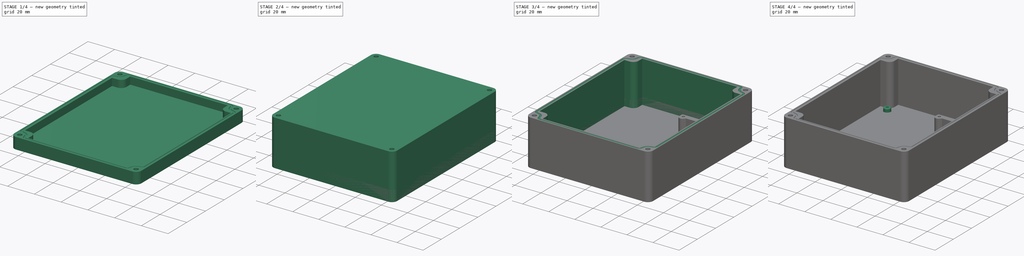
[diagram: build sequence overview — one tinted view per stage of 4, left to right]
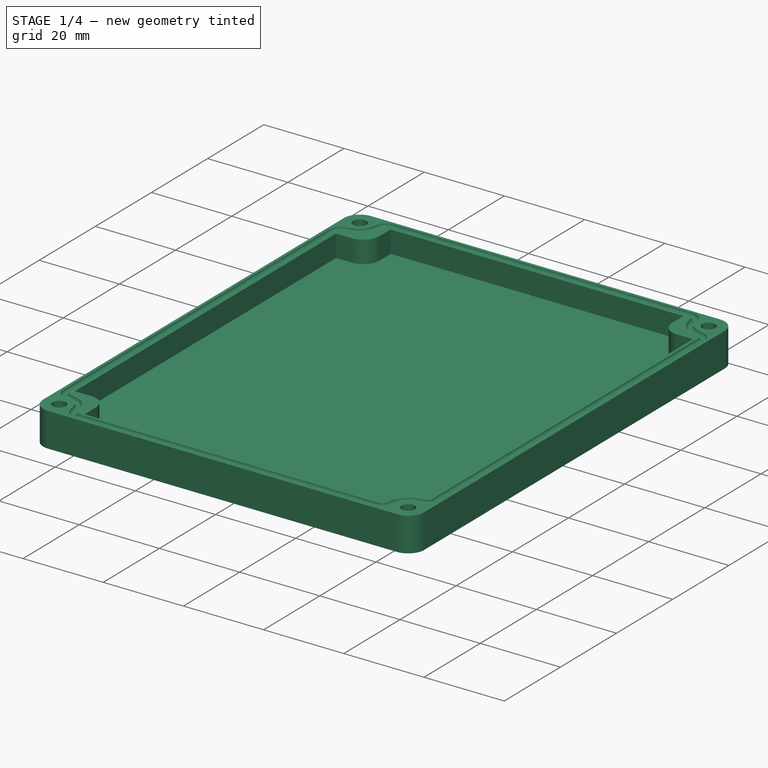
[diagram: stage 1 of 4 — iso view after this stage's code; geometry added in this stage tinted green]
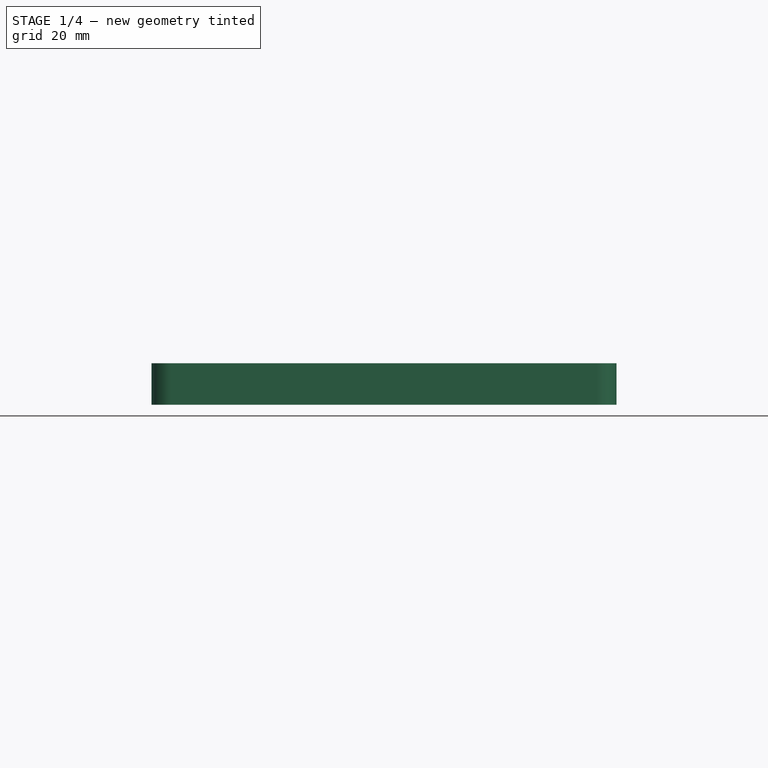
[diagram: stage 1 of 4 — front view after this stage's code; geometry added in this stage tinted green]
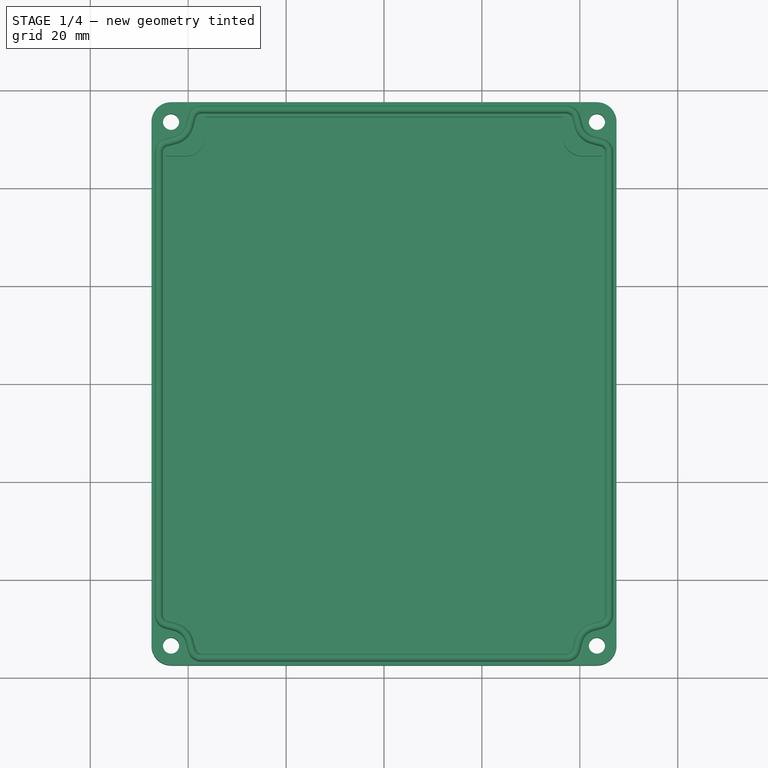
[diagram: stage 1 of 4 — top view after this stage's code; geometry added in this stage tinted green]
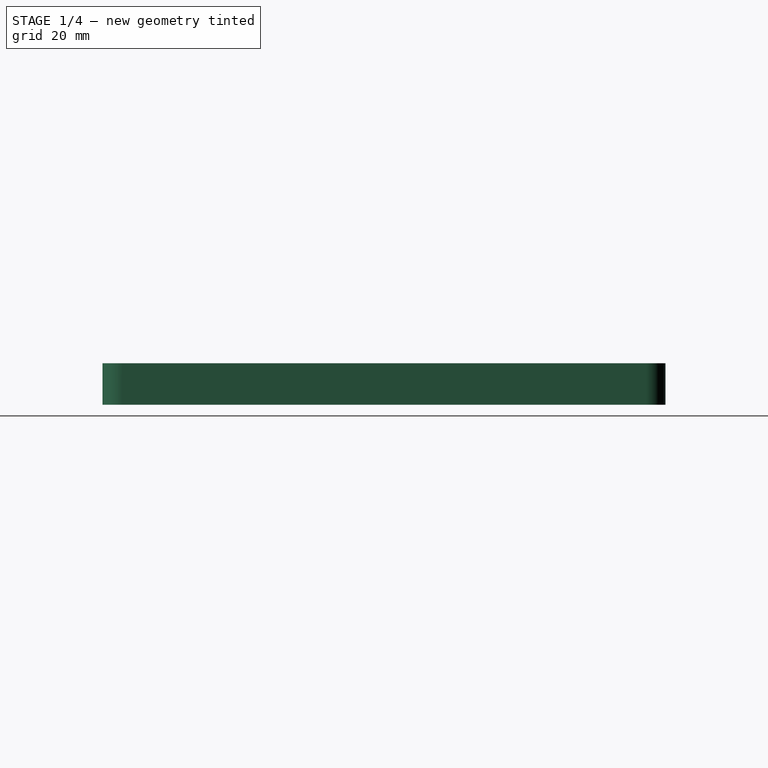
[diagram: stage 1 of 4 — right view after this stage's code; geometry added in this stage tinted green]
FCSTD DOCUMENT  (FreeCAD 0.21R33771 (Git))
Label: ADVtypeB_LCD16x2_paramEnclosure
License: Public Domain
LicenseURL: https://en.wikipedia.org/wiki/Public_domain
objects: Sketcher::SketchObject×12, PartDesign::Pad×4, PartDesign::Pocket×4, PartDesign::SubtractivePipe×2, PartDesign::Body×2, Spreadsheet::Sheet×1, PartDesign::Fillet×1, PartDesign::Chamfer×1, Part::Feature×1, App::Part×1
note: 39 computed .brp shape members not serialized (recipe doc carries the construction recipe); baked Part::Feature solids carry a one-line shape summary decoded from their .brp

FEATURE [Sketcher::SketchObject] Sketch005
  FullyConstrained = true
  MapMode = 5
  Support = -> [XY_Plane011]
  expr: Constraints[20] = Spreadsheet.width
  expr: Constraints[21] = Spreadsheet.lenght
  sketch-geometry (12):
    g0: LineSegment StartX=-47.5 StartY=53.5 StartZ=0 EndX=-47.5 EndY=-53.5 EndZ=0
    g1: LineSegment StartX=-43.5 StartY=57.5 StartZ=0 EndX=43.5 EndY=57.5 EndZ=0
    g2: LineSegment StartX=47.5 StartY=53.5 StartZ=0 EndX=47.5 EndY=-53.5 EndZ=0
    g3: LineSegment StartX=-43.5 StartY=-57.5 StartZ=0 EndX=43.5 EndY=-57.5 EndZ=0
    g4: ArcOfCircle CenterX=43.5 CenterY=-53.5 CenterZ=0 NormalX=0 NormalY=0 NormalZ=1 AngleXU=0 Radius=4 StartAngle=4.71239 EndAngle=6.28319
    g5: ArcOfCircle CenterX=-43.5 CenterY=-53.5 CenterZ=0 NormalX=0 NormalY=0 NormalZ=1 AngleXU=0 Radius=4 StartAngle=3.14159 EndAngle=4.71239
    g6: ArcOfCircle CenterX=-43.5 CenterY=53.5 CenterZ=0 NormalX=0 NormalY=0 NormalZ=1 AngleXU=0 Radius=4 StartAngle=1.5708 EndAngle=3.14159
    g7: ArcOfCircle CenterX=43.5 CenterY=53.5 CenterZ=0 NormalX=0 NormalY=0 NormalZ=1 AngleXU=0 Radius=4 StartAngle=4e-16 EndAngle=1.5708
    g8: Circle CenterX=-43.5 CenterY=53.5 CenterZ=0 NormalX=0 NormalY=0 NormalZ=1 AngleXU=0 Radius=1.65
    g9: Circle CenterX=43.5 CenterY=-53.5 CenterZ=0 NormalX=0 NormalY=0 NormalZ=1 AngleXU=0 Radius=1.65
    g10: Circle CenterX=-43.5 CenterY=-53.5 CenterZ=0 NormalX=0 NormalY=0 NormalZ=1 AngleXU=0 Radius=1.65
    g11: Circle CenterX=43.5 CenterY=53.5 CenterZ=0 NormalX=0 NormalY=0 NormalZ=1 AngleXU=0 Radius=1.65
  constraints (26):
    c: Vertical(g0)
    c: Horizontal(g1)
    c: Vertical(g2)
    c: Horizontal(g3)
    c: Tangent(g7,g2) = 1.5708
    c: Tangent(g7,g1) = 1.5708
    c: Tangent(g6,g1) = 1.5708
    c: Tangent(g6,g0) = -1.5708
    c: Tangent(g5,g0) = -1.5708
    c: Tangent(g5,g3) = -1.5708
    c: Tangent(g4,g3) = -1.5708
    c: Tangent(g4,g2) = 1.5708
    c: Radius(g6) = 4
    c: Radius(g8) = 1.65
    c: Coincident(g8,g6)
    c: Coincident(g11,g7)
    c: Coincident(g9,g4)
    c: Coincident(g10,g5)
    c: Symmetric(g5,g4,g-2)
    c: Symmetric(g7,g4,g-1)
    c: DistanceX(g0,g2) = 95
    c: DistanceY(g3,g1) = 115
    c: Equal(g8,g11)
    c: Equal(g11,g10)
    c: Equal(g10,g9)
    c: Equal(g6,g7)
FEATURE [PartDesign::Pad] Pad001
  Direction = (0,0,1)
  Length = 8.5
  Length2 = 10
  Profile = -> Sketch005
  ReferenceAxis = -> Sketch005 [N_Axis]
  Type = 0
  expr: Length = Spreadsheet.coverheight
FEATURE [Sketcher::SketchObject] Sketch006
  FullyConstrained = true
  MapMode = 5
  Placement = pos=(0,0,8.5) rot=(0,0,1;0rad)
  Support = -> [Pad001]
  expr: Constraints[40] = Spreadsheet.pocketl
  expr: Constraints[41] = Spreadsheet.pocketw
  sketch-geometry (16):
    g0: ArcOfCircle CenterX=-40.5 CenterY=50.5 CenterZ=0 NormalX=0 NormalY=0 NormalZ=1 AngleXU=0 Radius=4 StartAngle=4.71239 EndAngle=6.28319
    g1: ArcOfCircle CenterX=40.5 CenterY=50.5 CenterZ=0 NormalX=0 NormalY=0 NormalZ=1 AngleXU=0 Radius=4 StartAngle=3.14159 EndAngle=4.71239
    g2: ArcOfCircle CenterX=-40.5 CenterY=-50.5 CenterZ=0 NormalX=0 NormalY=0 NormalZ=1 AngleXU=0 Radius=4 StartAngle=-8.08e-14 EndAngle=1.5708
    g3: ArcOfCircle CenterX=40.5 CenterY=-50.5 CenterZ=0 NormalX=0 NormalY=0 NormalZ=1 AngleXU=0 Radius=4 StartAngle=1.5708 EndAngle=3.14159
    g4: LineSegment StartX=-36.5 StartY=-50.5 StartZ=0 EndX=-36.5 EndY=-54.5 EndZ=0
    g5: LineSegment StartX=-36.5 StartY=-54.5 StartZ=0 EndX=36.5 EndY=-54.5 EndZ=0
    g6: LineSegment StartX=36.5 StartY=-54.5 StartZ=0 EndX=36.5 EndY=-50.5 EndZ=0
    g7: LineSegment StartX=40.5 StartY=-46.5 StartZ=0 EndX=44.5 EndY=-46.5 EndZ=0
    g8: LineSegment StartX=44.5 StartY=-46.5 StartZ=0 EndX=44.5 EndY=46.5 EndZ=0
    g9: LineSegment StartX=40.5 StartY=46.5 StartZ=0 EndX=44.5 EndY=46.5 EndZ=0
    g10: LineSegment StartX=36.5 StartY=50.5 StartZ=0 EndX=36.5 EndY=54.5 EndZ=0
    g11: LineSegment StartX=-36.5 StartY=50.5 StartZ=0 EndX=-36.5 EndY=54.5 EndZ=0
    g12: LineSegment StartX=-36.5 StartY=54.5 StartZ=0 EndX=36.5 EndY=54.5 EndZ=0
    g13: LineSegment StartX=-40.5 StartY=46.5 StartZ=0 EndX=-44.5 EndY=46.5 EndZ=0
    g14: LineSegment StartX=-44.5 StartY=46.5 StartZ=0 EndX=-44.5 EndY=-46.5 EndZ=0
    g15: LineSegment StartX=-40.5 StartY=-46.5 StartZ=0 EndX=-44.5 EndY=-46.5 EndZ=0
  constraints (42):
    c: Coincident(g5,g4)
    c: Horizontal(g5)
    c: Coincident(g6,g5)
    c: Horizontal(g7)
    c: Coincident(g8,g7)
    c: Vertical(g8)
    c: Coincident(g9,g8)
    c: Vertical(g11)
    c: Coincident(g12,g11)
    c: Coincident(g12,g10)
    c: Horizontal(g13)
    c: Coincident(g14,g13)
    c: Coincident(g15,g14)
    c: Horizontal(g15)
    c: Vertical(g6)
    c: Horizontal(g9)
    c: Vertical(g10)
    c: Equal(g13,g11)
    c: Equal(g11,g10)
    c: Equal(g10,g9)
    c: Equal(g9,g15)
    c: Equal(g15,g4)
    c: Equal(g4,g6)
    c: Equal(g6,g7)
    c: Equal(g2,g3)
    c: Equal(g3,g0)
    c: Equal(g0,g1)
    c: Symmetric(g11,g10,g-2)
    c: Symmetric(g14,g13,g-1)
    c: Tangent(g13,g0) = 1.5708
    c: Tangent(g11,g0) = -1.5708
    c: Tangent(g10,g1) = 1.5708
    c: Tangent(g9,g1) = -1.5708
    c: Tangent(g7,g3) = 1.5708
    c: Tangent(g6,g3) = 1.5708
    c: Tangent(g15,g2) = -1.5708
    c: Radius(g1) = 4
    c: DistanceY(g11,g11) = 4
    c: Angle(g2) = 1.5708
    c: Tangent(g2,g4) = 1.5708
    c: DistanceY(g14,g14) = 93
    c: DistanceX(g12,g12) = 73
FEATURE [PartDesign::Pocket] Pocket001
  BaseFeature = -> Pad001
  Direction = (0,0,-1)
  Length = 5.5
  Length2 = 5
  Profile = -> Sketch006
  ReferenceAxis = -> Sketch006 [N_Axis]
  Type = 0
  expr: Length = Spreadsheet.coverinnerh
FEATURE [Sketcher::SketchObject] Sketch007
  FullyConstrained = true
  MapMode = 5
  expr: Constraints[52] = Spreadsheet.gasketcw
  expr: Constraints[53] = Spreadsheet.gasketcl
  sketch-geometry (24):
    g0: LineSegment StartX=-37.3079 StartY=56 StartZ=0 EndX=37.3079 EndY=56 EndZ=0
    g1: LineSegment StartX=-46 StartY=47.3079 StartZ=0 EndX=-46 EndY=-47.3079 EndZ=0
    g2: LineSegment StartX=46 StartY=-47.3079 StartZ=0 EndX=46 EndY=47.3079 EndZ=0
    g3: LineSegment StartX=39.2397 StartY=54.5176 StartZ=0 EndX=39.7574 EndY=52.5858 EndZ=0
    g4: LineSegment StartX=44.5176 StartY=49.2397 StartZ=0 EndX=42.5858 EndY=49.7574 EndZ=0
    g5: LineSegment StartX=-39.2397 StartY=54.5176 StartZ=0 EndX=-39.7574 EndY=52.5858 EndZ=0
    g6: LineSegment StartX=-44.5176 StartY=49.2397 StartZ=0 EndX=-42.5858 EndY=49.7574 EndZ=0
    g7: LineSegment StartX=-44.5176 StartY=-49.2397 StartZ=0 EndX=-42.5858 EndY=-49.7574 EndZ=0
    g8: LineSegment StartX=-39.7574 StartY=-52.5858 StartZ=0 EndX=-39.2397 EndY=-54.5176 EndZ=0
    g9: LineSegment StartX=-37.3079 StartY=-56 StartZ=0 EndX=37.3079 EndY=-56 EndZ=0
    g10: LineSegment StartX=39.2397 StartY=-54.5176 StartZ=0 EndX=39.7574 EndY=-52.5858 EndZ=0
    g11: LineSegment StartX=42.5858 StartY=-49.7574 StartZ=0 EndX=44.5176 EndY=-49.2397 EndZ=0
    g12: ArcOfCircle CenterX=-37.3079 CenterY=54 CenterZ=0 NormalX=0 NormalY=0 NormalZ=1 AngleXU=0 Radius=2 StartAngle=1.5708 EndAngle=2.87979
    g13: ArcOfCircle CenterX=-43.6211 CenterY=53.6211 CenterZ=0 NormalX=0 NormalY=0 NormalZ=1 AngleXU=0 Radius=4 StartAngle=4.97419 EndAngle=6.02139
    g14: ArcOfCircle CenterX=-44 CenterY=47.3079 CenterZ=0 NormalX=0 NormalY=0 NormalZ=1 AngleXU=0 Radius=2 StartAngle=1.8326 EndAngle=3.14159
    g15: ArcOfCircle CenterX=37.3079 CenterY=54 CenterZ=0 NormalX=0 NormalY=0 NormalZ=1 AngleXU=0 Radius=2 StartAngle=0.261799 EndAngle=1.5708
    g16: ArcOfCircle CenterX=43.6211 CenterY=53.6211 CenterZ=0 NormalX=0 NormalY=0 NormalZ=1 AngleXU=0 Radius=4 StartAngle=3.40339 EndAngle=4.45059
    g17: ArcOfCircle CenterX=44 CenterY=47.3079 CenterZ=0 NormalX=0 NormalY=0 NormalZ=1 AngleXU=0 Radius=2 StartAngle=-9e-16 EndAngle=1.309
    g18: ArcOfCircle CenterX=44 CenterY=-47.3079 CenterZ=0 NormalX=0 NormalY=0 NormalZ=1 AngleXU=0 Radius=2 StartAngle=4.97419 EndAngle=6.28319
    g19: ArcOfCircle CenterX=43.6211 CenterY=-53.6211 CenterZ=0 NormalX=0 NormalY=0 NormalZ=1 AngleXU=0 Radius=4 StartAngle=1.8326 EndAngle=2.87979
    g20: ArcOfCircle CenterX=37.3079 CenterY=-54 CenterZ=0 NormalX=0 NormalY=0 NormalZ=1 AngleXU=0 Radius=2 StartAngle=4.71239 EndAngle=6.02139
    g21: ArcOfCircle CenterX=-37.3079 CenterY=-54 CenterZ=0 NormalX=0 NormalY=0 NormalZ=1 AngleXU=0 Radius=2 StartAngle=3.40339 EndAngle=4.71239
    g22: ArcOfCircle CenterX=-43.6211 CenterY=-53.6211 CenterZ=0 NormalX=0 NormalY=0 NormalZ=1 AngleXU=0 Radius=4 StartAngle=0.261799 EndAngle=1.309
    g23: ArcOfCircle CenterX=-44 CenterY=-47.3079 CenterZ=0 NormalX=0 NormalY=0 NormalZ=1 AngleXU=0 Radius=2 StartAngle=3.14159 EndAngle=4.45059
  constraints (54):
    c: Horizontal(g0)
    c: Vertical(g1)
    c: Vertical(g2)
    c: Horizontal(g9)
    c: Tangent(g12,g0) = 1.5708
    c: Tangent(g12,g5) = -1.5708
    c: Tangent(g13,g5) = 1.5708
    c: Tangent(g13,g6) = -1.5708
    c: Tangent(g14,g6) = 1.5708
    c: Tangent(g14,g1) = -1.5708
    c: Tangent(g15,g0) = 1.5708
    c: Tangent(g15,g3) = 1.5708
    c: Tangent(g16,g3) = -1.5708
    c: Tangent(g16,g4) = 1.5708
    c: Tangent(g17,g4) = -1.5708
    c: Tangent(g17,g2) = -1.5708
    c: Tangent(g18,g2) = -1.5708
    c: Tangent(g18,g11) = -1.5708
    c: Tangent(g19,g11) = 1.5708
    c: Tangent(g19,g10) = 1.5708
    c: Tangent(g20,g10) = -1.5708
    c: Tangent(g20,g9) = -1.5708
    c: Tangent(g21,g9) = -1.5708
    c: Tangent(g21,g8) = -1.5708
    c: Tangent(g22,g8) = 1.5708
    c: Tangent(g22,g7) = 1.5708
    c: Tangent(g23,g7) = -1.5708
    c: Tangent(g23,g1) = -1.5708
    c: Equal(g23,g21)
    c: Equal(g20,g18)
    c: Equal(g17,g15)
    c: Equal(g5,g3)
    c: Equal(g3,g6)
    c: Equal(g6,g4)
    c: Equal(g4,g7)
    c: Equal(g7,g8)
    c: Equal(g8,g10)
    c: Equal(g10,g11)
    c: Equal(g19,g22)
    c: Equal(g22,g13)
    c: Equal(g13,g16)
    c: Angle(g15) = 1.309
    c: Angle(g13) = 1.0472
    c: Symmetric(g12,g15,g-2)
    c: Symmetric(g14,g17,g-2)
    c: Symmetric(g14,g23,g-1)
    c: Symmetric(g17,g18,g-1)
    c: Symmetric(g21,g12,g-1)
    c: Symmetric(g15,g20,g-1)
    c: Distance(g5) = 2
    c: Radius(g16) = 4
    c: Radius(g12) = 2
    c: DistanceX(g1,g2) = 92
    c: DistanceY(g9,g0) = 112
FEATURE [Sketcher::SketchObject] Sketch008
  FullyConstrained = true
  MapMode = 5
  Placement = pos=(0,0,0) rot=(1,0,0;1.5708rad)
  Support = -> [XZ_Plane011]
  expr: Constraints[0] = Spreadsheet.gasketw
  expr: Constraints[1] = Spreadsheet.gasketdia
  expr: Constraints[2] = Spreadsheet.coverheight
  sketch-geometry (1):
    g0: Circle CenterX=46 CenterY=8.5 CenterZ=0 NormalX=0 NormalY=0 NormalZ=1 AngleXU=0 Radius=0.8
  constraints (3):
    c: DistanceX(g0) = 46
    c: Diameter(g0) = 1.6
    c: DistanceY(g0) = 8.5
FEATURE [PartDesign::SubtractivePipe] SubtractivePipe001
  AuxilleryCurvelinear = true
  AuxillerySpineTangent = false
  BaseFeature = -> Pocket001
  Binormal = (0,0,0)
  Mode = 0
  Profile = -> Sketch008
  Spine = -> Sketch007 [Edge20,Edge21,Edge22,Edge19,Edge18,Edge17,Edge16,Edge15,Edge14,Edge13,Edge12,Edge11,Edge10,Edge9,Edge8,Edge7,Edge6,Edge5,Edge4,Edge3,Edge2,Edge1,Edge24,Edge23]
  SpineTangent = false
  Transformation = 0
  Transition = 2
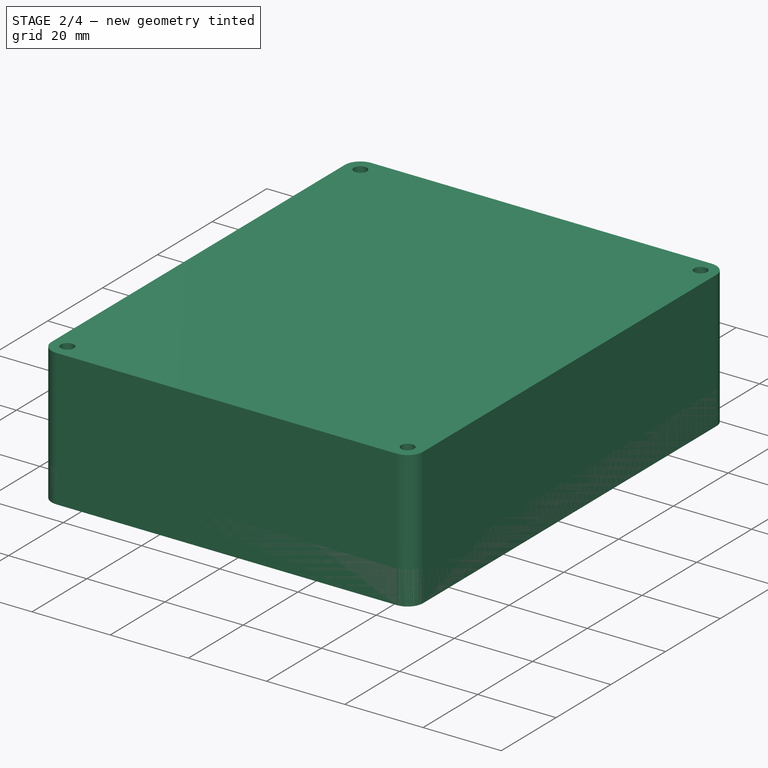
[diagram: stage 2 of 4 — iso view after this stage's code; geometry added in this stage tinted green]
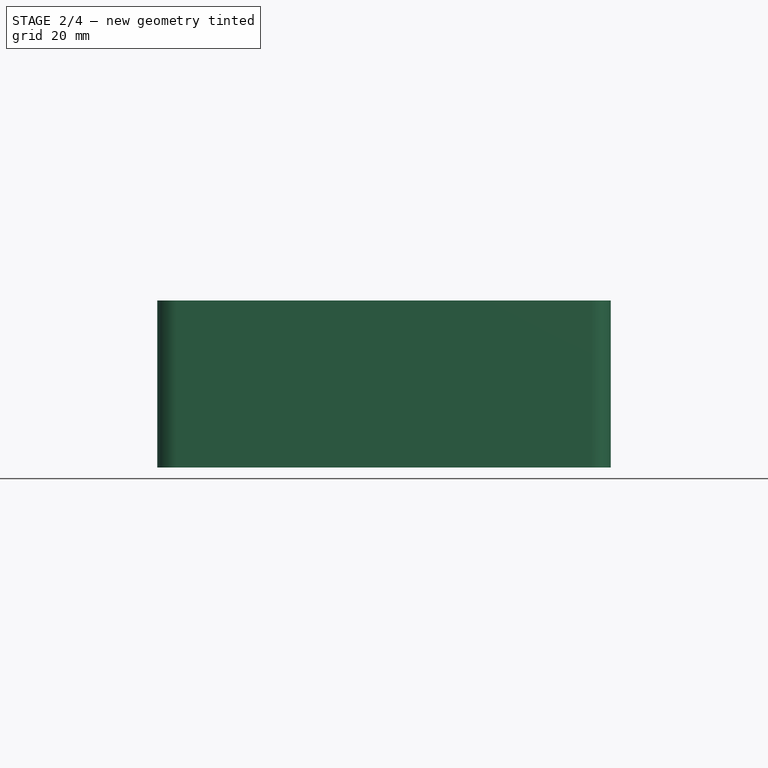
[diagram: stage 2 of 4 — front view after this stage's code; geometry added in this stage tinted green]
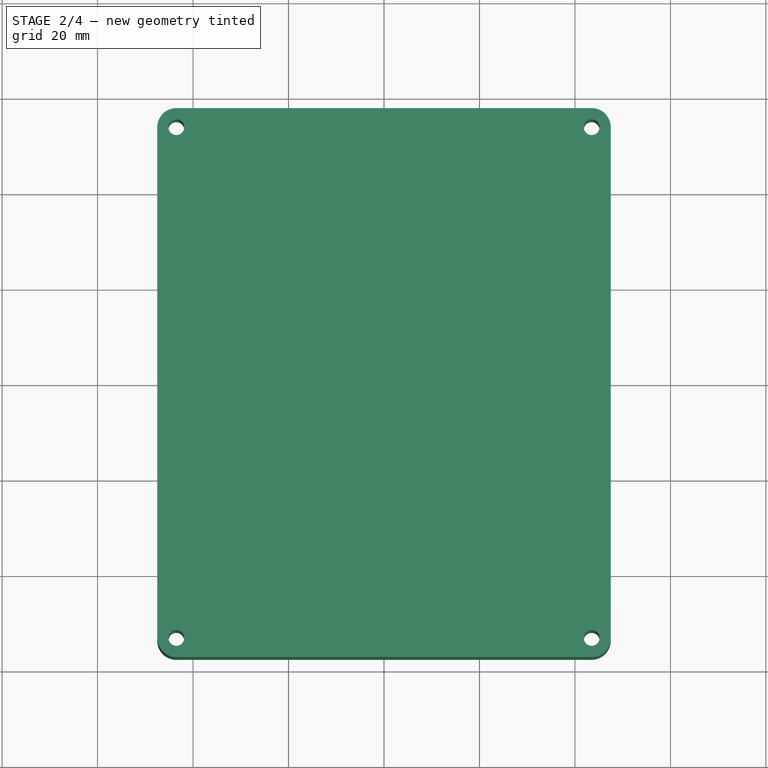
[diagram: stage 2 of 4 — top view after this stage's code; geometry added in this stage tinted green]
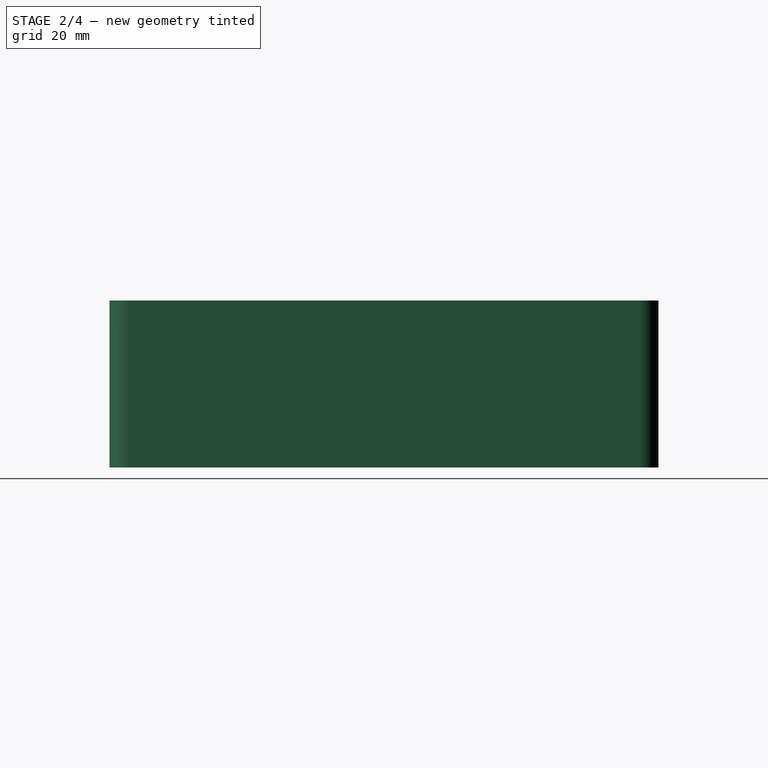
[diagram: stage 2 of 4 — right view after this stage's code; geometry added in this stage tinted green]
FEATURE [Sketcher::SketchObject] Sketch
  FullyConstrained = true
  MapMode = 5
  Support = -> [XY_Plane010]
  expr: Constraints[20] = Spreadsheet.B3
  expr: Constraints[21] = Spreadsheet.B2
  sketch-geometry (12):
    g0: LineSegment StartX=-47.5 StartY=53.5 StartZ=0 EndX=-47.5 EndY=-53.5 EndZ=0
    g1: LineSegment StartX=-43.5 StartY=57.5 StartZ=0 EndX=43.5 EndY=57.5 EndZ=0
    g2: LineSegment StartX=47.5 StartY=53.5 StartZ=0 EndX=47.5 EndY=-53.5 EndZ=0
    g3: LineSegment StartX=-43.5 StartY=-57.5 StartZ=0 EndX=43.5 EndY=-57.5 EndZ=0
    g4: ArcOfCircle CenterX=43.5 CenterY=-53.5 CenterZ=0 NormalX=0 NormalY=0 NormalZ=1 AngleXU=0 Radius=4 StartAngle=4.71239 EndAngle=6.28319
    g5: ArcOfCircle CenterX=-43.5 CenterY=-53.5 CenterZ=0 NormalX=0 NormalY=0 NormalZ=1 AngleXU=0 Radius=4 StartAngle=3.14159 EndAngle=4.71239
    g6: ArcOfCircle CenterX=-43.5 CenterY=53.5 CenterZ=0 NormalX=0 NormalY=0 NormalZ=1 AngleXU=0 Radius=4 StartAngle=1.5708 EndAngle=3.14159
    g7: ArcOfCircle CenterX=43.5 CenterY=53.5 CenterZ=0 NormalX=0 NormalY=0 NormalZ=1 AngleXU=0 Radius=4 StartAngle=5e-16 EndAngle=1.5708
    g8: Circle CenterX=-43.5 CenterY=53.5 CenterZ=0 NormalX=0 NormalY=0 NormalZ=1 AngleXU=0 Radius=1.65
    g9: Circle CenterX=43.5 CenterY=-53.5 CenterZ=0 NormalX=0 NormalY=0 NormalZ=1 AngleXU=0 Radius=1.65
    g10: Circle CenterX=-43.5 CenterY=-53.5 CenterZ=0 NormalX=0 NormalY=0 NormalZ=1 AngleXU=0 Radius=1.65
    g11: Circle CenterX=43.5 CenterY=53.5 CenterZ=0 NormalX=0 NormalY=0 NormalZ=1 AngleXU=0 Radius=1.65
  constraints (26):
    c: Vertical(g0)
    c: Horizontal(g1)
    c: Vertical(g2)
    c: Horizontal(g3)
    c: Tangent(g7,g2) = 1.5708
    c: Tangent(g7,g1) = 1.5708
    c: Tangent(g6,g1) = 1.5708
    c: Tangent(g6,g0) = -1.5708
    c: Tangent(g5,g0) = -1.5708
    c: Tangent(g5,g3) = -1.5708
    c: Tangent(g4,g3) = -1.5708
    c: Tangent(g4,g2) = 1.5708
    c: Radius(g6) = 4
    c: Radius(g8) = 1.65
    c: Coincident(g8,g6)
    c: Coincident(g11,g7)
    c: Coincident(g9,g4)
    c: Coincident(g10,g5)
    c: Symmetric(g5,g4,g-2)
    c: Symmetric(g7,g4,g-1)
    c: DistanceX(g0,g2) = 95
    c: DistanceY(g3,g1) = 115
    c: Equal(g8,g11)
    c: Equal(g11,g10)
    c: Equal(g10,g9)
    c: Equal(g6,g7)
FEATURE [PartDesign::Pad] Pad
  Direction = (0,0,1)
  Length = 35
  Length2 = 10
  Profile = -> Sketch
  ReferenceAxis = -> Sketch [N_Axis]
  Type = 0
  expr: Length = Spreadsheet.B4
FEATURE [PartDesign::Body] Body  label="Bottom"
  Group = -> [Sketch,Pad,Sketch001,Pocket,Sketch003,Sketch004,SubtractivePipe,Sketch009,Pocket002,Sketch010,Pad002,Fillet,Chamfer001]
  Origin = -> Origin010
  Tip = -> Chamfer001
FEATURE [Part::Feature] Part__Feature048  label="SOLID047"
  shape: bbox 80 x 36 x 15 mm, 210 faces (baked)
FEATURE [App::Part] WC1602A
  Group = -> [Part__Feature048]
  Origin = -> Origin174
  Placement = pos=(38,32,30) rot=(0,0,1;4.71239rad)
  expr: .Placement.Base.x = Spreadsheet.lcdposx
  expr: .Placement.Base.z = Spreadsheet.lcdposz
FEATURE [Sketcher::SketchObject] Sketch011
  FullyConstrained = true
  MapMode = 5
  Placement = pos=(0,0,3) rot=(0,0,1;0rad)
  Support = -> [SubtractivePipe001]
  expr: Constraints[7] = Spreadsheet.lcdpocketx
  sketch-geometry (4):
    g0: LineSegment StartX=10 StartY=36 StartZ=0 EndX=35 EndY=36 EndZ=0
    g1: LineSegment StartX=35 StartY=36 StartZ=0 EndX=35 EndY=-36 EndZ=0
    g2: LineSegment StartX=35 StartY=-36 StartZ=0 EndX=10 EndY=-36 EndZ=0
    g3: LineSegment StartX=10 StartY=-36 StartZ=0 EndX=10 EndY=36 EndZ=0
  constraints (11):
    c: Coincident(g0,g1)
    c: Coincident(g1,g2)
    c: Coincident(g2,g3)
    c: Coincident(g3,g0)
    c: Horizontal(g2)
    c: DistanceX(g0,g0) = 25
    c: DistanceY(g1,g1) = 72
    c: DistanceX(g0) = 35
    c: Symmetric(g0,g1,g-1)
    c: Horizontal(g0)
    c: Vertical(g3)
FEATURE [PartDesign::Pocket] Pocket003
  BaseFeature = -> SubtractivePipe001
  Direction = (0,0,-1)
  Length = 6
  Length2 = 5
  Profile = -> Sketch011
  ReferenceAxis = -> Sketch011 [N_Axis]
  Type = 0
FEATURE [Sketcher::SketchObject] Sketch012
  FullyConstrained = true
  MapMode = 5
  Placement = pos=(0,0,3) rot=(0,0,1;0rad)
  Support = -> [Pocket003]
  expr: Constraints[51] = Spreadsheet.lcdposx
  sketch-geometry (24):
    g0: LineSegment StartX=5.5 StartY=40 StartZ=0 EndX=39.5 EndY=40 EndZ=0
    g1: ArcOfCircle CenterX=5.5 CenterY=39 CenterZ=0 NormalX=0 NormalY=0 NormalZ=1 AngleXU=0 Radius=1 StartAngle=1.5708 EndAngle=3.14159
    g2: ArcOfCircle CenterX=39.5 CenterY=39 CenterZ=0 NormalX=0 NormalY=0 NormalZ=1 AngleXU=0 Radius=1 StartAngle=1.6e-15 EndAngle=1.5708
    g3: LineSegment StartX=4.5 StartY=39 StartZ=0 EndX=4.5 EndY=36.5 EndZ=0
    g4: LineSegment StartX=40.5 StartY=39 StartZ=0 EndX=40.5 EndY=36.5 EndZ=0
    g5: ArcOfCircle CenterX=6.95 CenterY=36.5 CenterZ=0 NormalX=0 NormalY=0 NormalZ=1 AngleXU=0 Radius=2.45 StartAngle=3.14159 EndAngle=5.49779
    g6: ArcOfCircle CenterX=38.05 CenterY=36.5 CenterZ=0 NormalX=0 NormalY=0 NormalZ=1 AngleXU=0 Radius=2.45 StartAngle=3.92699 EndAngle=6.28319
    g7: LineSegment StartX=8.68241 StartY=34.7676 StartZ=0 EndX=10 EndY=36.0852 EndZ=0
    g8: LineSegment StartX=36.3176 StartY=34.7676 StartZ=0 EndX=35 EndY=36.0852 EndZ=0
    g9: LineSegment StartX=10 StartY=36.0852 StartZ=0 EndX=35 EndY=36.0852 EndZ=0
    g10: LineSegment StartX=5.5 StartY=-40 StartZ=0 EndX=39.5 EndY=-40 EndZ=0
    g11: ArcOfCircle CenterX=5.5 CenterY=-39 CenterZ=0 NormalX=0 NormalY=0 NormalZ=1 AngleXU=0 Radius=1 StartAngle=3.14159 EndAngle=4.71239
    g12: ArcOfCircle CenterX=39.5 CenterY=-39 CenterZ=0 NormalX=0 NormalY=0 NormalZ=1 AngleXU=0 Radius=1 StartAngle=4.71239 EndAngle=6.28319
    g13: LineSegment StartX=4.5 StartY=-39 StartZ=0 EndX=4.5 EndY=-36.5 EndZ=0
    g14: LineSegment StartX=40.5 StartY=-39 StartZ=0 EndX=40.5 EndY=-36.5 EndZ=0
    g15: ArcOfCircle CenterX=6.95 CenterY=-36.5 CenterZ=0 NormalX=0 NormalY=0 NormalZ=1 AngleXU=0 Radius=2.45 StartAngle=0.785398 EndAngle=3.14159
    g16: LineSegment StartX=8.68241 StartY=-34.7676 StartZ=0 EndX=10 EndY=-36.0852 EndZ=0
    g17: LineSegment StartX=10 StartY=-36.0852 StartZ=0 EndX=35 EndY=-36.0852 EndZ=0
    g18: Circle CenterX=7 CenterY=-37.5 CenterZ=0 NormalX=0 NormalY=0 NormalZ=1 AngleXU=0 Radius=1.05
    g19: Circle CenterX=38 CenterY=-37.5 CenterZ=0 NormalX=0 NormalY=0 NormalZ=1 AngleXU=0 Radius=1.05
    g20: Circle CenterX=38 CenterY=37.5 CenterZ=0 NormalX=0 NormalY=0 NormalZ=1 AngleXU=0 Radius=1.05
    g21: Circle CenterX=7 CenterY=37.5 CenterZ=0 NormalX=0 NormalY=0 NormalZ=1 AngleXU=0 Radius=1.05
    g22: LineSegment StartX=35 StartY=-36.0852 StartZ=0 EndX=36.3176 EndY=-34.7676 EndZ=0
    g23: ArcOfCircle CenterX=38.05 CenterY=-36.5 CenterZ=0 NormalX=0 NormalY=0 NormalZ=1 AngleXU=0 Radius=2.45 StartAngle=1e-16 EndAngle=2.35619
  constraints (61):
    c: Horizontal(g0)
    c: Vertical(g3)
    c: Vertical(g4)
    c: Tangent(g5,g3) = -1.5708
    c: Tangent(g3,g1) = -1.5708
    c: Tangent(g1,g0) = 1.5708
    c: Tangent(g2,g0) = 1.5708
    c: Tangent(g4,g2) = 1.5708
    c: Tangent(g6,g4) = 1.5708
    c: Horizontal(g9)
    c: Tangent(g8,g6) = 1.5708
    c: Tangent(g7,g5) = -1.5708
    c: Equal(g1,g2)
    c: Equal(g7,g8)
    c: Equal(g6,g5)
    c: Angle(g7) = 0.785398
    c: Coincident(g9,g7)
    c: Coincident(g8,g9)
    c: Radius(g1) = 1
    c: DistanceX(g0,g0) = 34
    c: DistanceY(g3,g3) = 2.5
    c: DistanceX(g9,g9) = 25
    c: Radius(g5) = 2.45
    c: Horizontal(g10)
    c: Vertical(g13)
    c: Vertical(g14)
    c: Coincident(g17,g16)
    c: Horizontal(g17)
    c: Tangent(g12,g10) = -1.5708
    c: Tangent(g14,g12) = -1.5708
    c: Tangent(g11,g10) = -1.5708
    c: Tangent(g13,g11) = 1.5708
    c: Tangent(g15,g13) = 1.5708
    c: Tangent(g16,g15) = 1.5708
    c: Equal(g7,g16)
    c: Equal(g10,g0)
    c: Equal(g3,g13)
    c: Equal(g4,g14)
    c: Equal(g1,g11)
    c: Equal(g2,g12)
    c: Angle(g16) = -0.785398
    c: DistanceY(g10,g0) = 80
    c: Symmetric(g3,g13,g-1)
    c: Diameter(g18) = 2.1
    c: Symmetric(g21,g18,g-1)
    c: Symmetric(g20,g19,g-1)
    c: Equal(g18,g19)
    c: Equal(g19,g20)
    c: Equal(g20,g21)
    c: DistanceX(g21,g20) = 31
    c: DistanceY(g19,g20) = 75
    c: DistanceX(g20) = 38
    c: DistanceY(g18,g21) = 75
    c: Equal(g13,g14)
    c: DistanceX(g20,g6) = 0.05
    c: Coincident(g22,g17)
    c: Tangent(g23,g22) = 1.5708
    c: Tangent(g23,g14) = -1.5708
    c: Equal(g15,g23)
    c: Equal(g22,g16)
    c: Equal(g6,g23)
FEATURE [PartDesign::Pad] Pad003
  BaseFeature = -> Pocket003
  Direction = (0,0,1)
  Length = 10
  Length2 = 10
  Profile = -> Sketch012
  ReferenceAxis = -> Sketch012 [N_Axis]
  Type = 0
FEATURE [PartDesign::Body] Body001  label="Cover"
  Group = -> [Sketch005,Pad001,Sketch006,Pocket001,Sketch007,Sketch008,SubtractivePipe001,Sketch011,Pocket003,Sketch012,Pad003]
  Origin = -> Origin011
  Placement = pos=(0,6e-15,45.5) rot=(1,0,0;3.14159rad)
  Tip = -> Pad003
  expr: .Placement.Base.z = Spreadsheet.coverposition
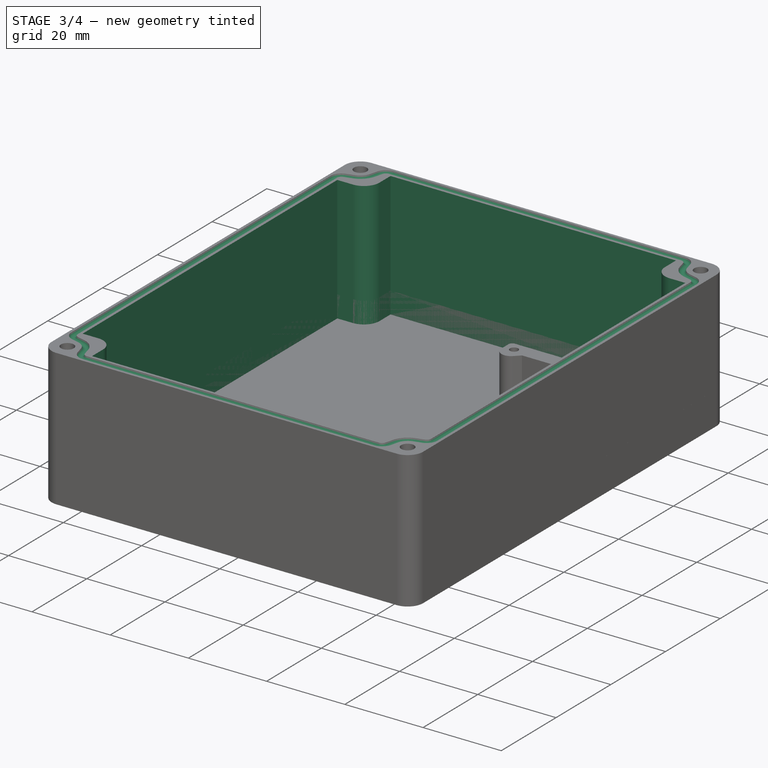
[diagram: stage 3 of 4 — iso view after this stage's code; geometry added in this stage tinted green]
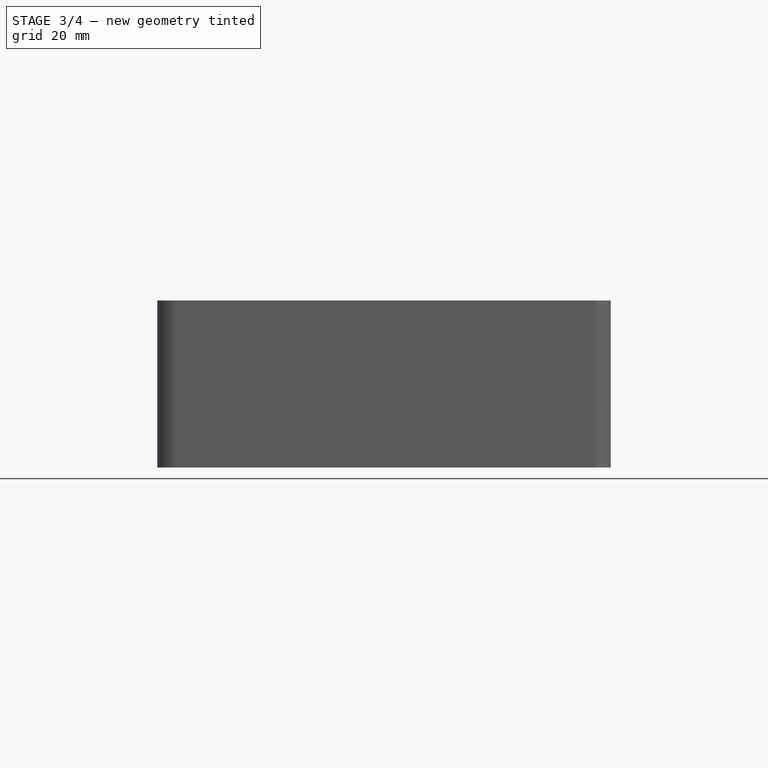
[diagram: stage 3 of 4 — front view after this stage's code; geometry added in this stage tinted green]
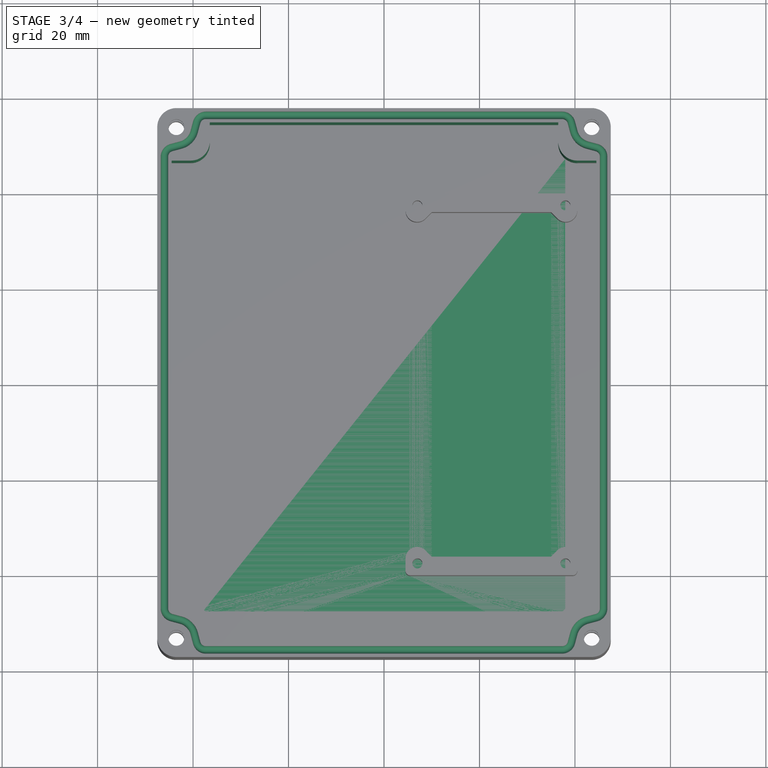
[diagram: stage 3 of 4 — top view after this stage's code; geometry added in this stage tinted green]
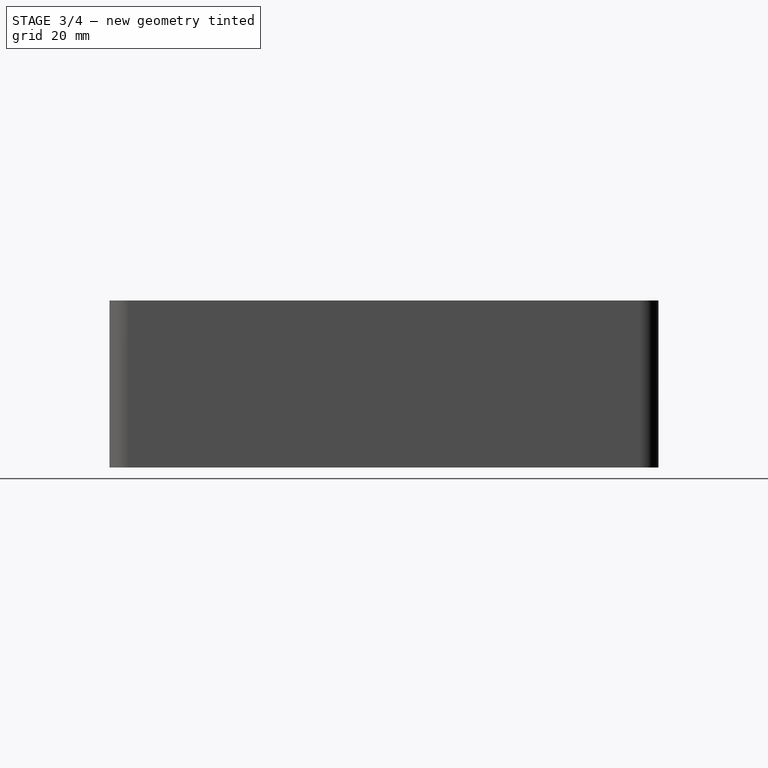
[diagram: stage 3 of 4 — right view after this stage's code; geometry added in this stage tinted green]
FEATURE [Spreadsheet::Sheet] Spreadsheet
  cells = A2='length (min=105); B2=115; C2(lenght)==B2 < 105 ? 105 : B2; D2(innerl)==lenght - thickness * 2; E2(holecl)==lenght - 8; F2(gasketl)==(lenght - thickness) / 2; G2(gasketcl)==lenght - thickness; H2(pocketl)==lenght - 16 - thickness * 2; I2(pcbl)==lenght - 24 - thickness * 2; A3='width (min=50); B3=95; C3(width)==B3 < 50 ? 50 : B3; D3(innerw)==width - thickness * 2; E3(holecw)==width - 8; F3(gasketw)==(width - thickness) / 2; G3(gasketcw)==width - thickness; H3(pocketw)==width - 16 - thickness * 2; I3(lcdposx)==width / 2 - 25 + 15.5; J3(lcdpocketx)==width / 2 - 25 + 12.5; A4='height (min=12); B4=35; C4(height)==B4 < 12 ? 12 : B4; D4(innerh)==height - thickness; E4(lcdposz)==height - thickness - 2; A5='thickness (min=3 max=5); B5=3; C5(thickness)==B5 < 3 ? 3 : (B5 > 5 ? 5 : B5); A6='gasket (min=1.6 max=2.2); B6=1.6; C6(gasketdia)==B6 < 1.6 ? 1.6 : (B6 > 2.2 ? 2.2 : B6); A7='coverheight (min=8.5); B7=8; C7(coverheight)==B7 < 8.5 ? 8.5 : B7; D7(coverinnerh)==coverheight - thickness; E7(coverposition)==coverheight + height + 2
FEATURE [Sketcher::SketchObject] Sketch001
  FullyConstrained = true
  MapMode = 5
  Placement = pos=(0,0,35) rot=(0,0,1;0rad)
  Support = -> [Pad]
  expr: Constraints[40] = Spreadsheet.pocketl
  expr: Constraints[41] = Spreadsheet.pocketw
  sketch-geometry (16):
    g0: ArcOfCircle CenterX=-40.5 CenterY=50.5 CenterZ=0 NormalX=0 NormalY=0 NormalZ=1 AngleXU=0 Radius=4 StartAngle=4.71239 EndAngle=6.28319
    g1: ArcOfCircle CenterX=40.5 CenterY=50.5 CenterZ=0 NormalX=0 NormalY=0 NormalZ=1 AngleXU=0 Radius=4 StartAngle=3.14159 EndAngle=4.71239
    g2: ArcOfCircle CenterX=-40.5 CenterY=-50.5 CenterZ=0 NormalX=0 NormalY=0 NormalZ=1 AngleXU=0 Radius=4 StartAngle=-8.08e-14 EndAngle=1.5708
    g3: ArcOfCircle CenterX=40.5 CenterY=-50.5 CenterZ=0 NormalX=0 NormalY=0 NormalZ=1 AngleXU=0 Radius=4 StartAngle=1.5708 EndAngle=3.14159
    g4: LineSegment StartX=-36.5 StartY=-50.5 StartZ=0 EndX=-36.5 EndY=-54.5 EndZ=0
    g5: LineSegment StartX=-36.5 StartY=-54.5 StartZ=0 EndX=36.5 EndY=-54.5 EndZ=0
    g6: LineSegment StartX=36.5 StartY=-54.5 StartZ=0 EndX=36.5 EndY=-50.5 EndZ=0
    g7: LineSegment StartX=40.5 StartY=-46.5 StartZ=0 EndX=44.5 EndY=-46.5 EndZ=0
    g8: LineSegment StartX=44.5 StartY=-46.5 StartZ=0 EndX=44.5 EndY=46.5 EndZ=0
    g9: LineSegment StartX=40.5 StartY=46.5 StartZ=0 EndX=44.5 EndY=46.5 EndZ=0
    g10: LineSegment StartX=36.5 StartY=50.5 StartZ=0 EndX=36.5 EndY=54.5 EndZ=0
    g11: LineSegment StartX=-36.5 StartY=50.5 StartZ=0 EndX=-36.5 EndY=54.5 EndZ=0
    g12: LineSegment StartX=-36.5 StartY=54.5 StartZ=0 EndX=36.5 EndY=54.5 EndZ=0
    g13: LineSegment StartX=-40.5 StartY=46.5 StartZ=0 EndX=-44.5 EndY=46.5 EndZ=0
    g14: LineSegment StartX=-44.5 StartY=46.5 StartZ=0 EndX=-44.5 EndY=-46.5 EndZ=0
    g15: LineSegment StartX=-40.5 StartY=-46.5 StartZ=0 EndX=-44.5 EndY=-46.5 EndZ=0
  constraints (42):
    c: Coincident(g5,g4)
    c: Horizontal(g5)
    c: Coincident(g6,g5)
    c: Horizontal(g7)
    c: Coincident(g8,g7)
    c: Vertical(g8)
    c: Coincident(g9,g8)
    c: Vertical(g11)
    c: Coincident(g12,g11)
    c: Coincident(g12,g10)
    c: Horizontal(g13)
    c: Coincident(g14,g13)
    c: Coincident(g15,g14)
    c: Horizontal(g15)
    c: Vertical(g6)
    c: Horizontal(g9)
    c: Vertical(g10)
    c: Equal(g13,g11)
    c: Equal(g11,g10)
    c: Equal(g10,g9)
    c: Equal(g9,g15)
    c: Equal(g15,g4)
    c: Equal(g4,g6)
    c: Equal(g6,g7)
    c: Equal(g2,g3)
    c: Equal(g3,g0)
    c: Equal(g0,g1)
    c: Symmetric(g11,g10,g-2)
    c: Symmetric(g14,g13,g-1)
    c: Tangent(g13,g0) = 1.5708
    c: Tangent(g11,g0) = -1.5708
    c: Tangent(g10,g1) = 1.5708
    c: Tangent(g9,g1) = -1.5708
    c: Tangent(g7,g3) = 1.5708
    c: Tangent(g6,g3) = 1.5708
    c: Tangent(g15,g2) = -1.5708
    c: Radius(g1) = 4
    c: DistanceY(g11,g11) = 4
    c: Angle(g2) = 1.5708
    c: Tangent(g2,g4) = 1.5708
    c: DistanceY(g14,g14) = 93
    c: DistanceX(g12,g12) = 73
FEATURE [PartDesign::Pocket] Pocket
  BaseFeature = -> Pad
  Direction = (0,0,-1)
  Length = 32
  Length2 = 5
  Profile = -> Sketch001
  ReferenceAxis = -> Sketch001 [N_Axis]
  Type = 0
  expr: Length = Spreadsheet.innerh
FEATURE [Sketcher::SketchObject] Sketch003
  FullyConstrained = true
  MapMode = 5
  expr: Constraints[52] = Spreadsheet.gasketcw
  expr: Constraints[53] = Spreadsheet.gasketcl
  sketch-geometry (24):
    g0: LineSegment StartX=-37.3079 StartY=56 StartZ=0 EndX=37.3079 EndY=56 EndZ=0
    g1: LineSegment StartX=-46 StartY=47.3079 StartZ=0 EndX=-46 EndY=-47.3079 EndZ=0
    g2: LineSegment StartX=46 StartY=-47.3079 StartZ=0 EndX=46 EndY=47.3079 EndZ=0
    g3: LineSegment StartX=39.2397 StartY=54.5176 StartZ=0 EndX=39.7574 EndY=52.5858 EndZ=0
    g4: LineSegment StartX=44.5176 StartY=49.2397 StartZ=0 EndX=42.5858 EndY=49.7574 EndZ=0
    g5: LineSegment StartX=-39.2397 StartY=54.5176 StartZ=0 EndX=-39.7574 EndY=52.5858 EndZ=0
    g6: LineSegment StartX=-44.5176 StartY=49.2397 StartZ=0 EndX=-42.5858 EndY=49.7574 EndZ=0
    g7: LineSegment StartX=-44.5176 StartY=-49.2397 StartZ=0 EndX=-42.5858 EndY=-49.7574 EndZ=0
    g8: LineSegment StartX=-39.7574 StartY=-52.5858 StartZ=0 EndX=-39.2397 EndY=-54.5176 EndZ=0
    g9: LineSegment StartX=-37.3079 StartY=-56 StartZ=0 EndX=37.3079 EndY=-56 EndZ=0
    g10: LineSegment StartX=39.2397 StartY=-54.5176 StartZ=0 EndX=39.7574 EndY=-52.5858 EndZ=0
    g11: LineSegment StartX=42.5858 StartY=-49.7574 StartZ=0 EndX=44.5176 EndY=-49.2397 EndZ=0
    g12: ArcOfCircle CenterX=-37.3079 CenterY=54 CenterZ=0 NormalX=0 NormalY=0 NormalZ=1 AngleXU=0 Radius=2 StartAngle=1.5708 EndAngle=2.87979
    g13: ArcOfCircle CenterX=-43.6211 CenterY=53.6211 CenterZ=0 NormalX=0 NormalY=0 NormalZ=1 AngleXU=0 Radius=4 StartAngle=4.97419 EndAngle=6.02139
    g14: ArcOfCircle CenterX=-44 CenterY=47.3079 CenterZ=0 NormalX=0 NormalY=0 NormalZ=1 AngleXU=0 Radius=2 StartAngle=1.8326 EndAngle=3.14159
    g15: ArcOfCircle CenterX=37.3079 CenterY=54 CenterZ=0 NormalX=0 NormalY=0 NormalZ=1 AngleXU=0 Radius=2 StartAngle=0.261799 EndAngle=1.5708
    g16: ArcOfCircle CenterX=43.6211 CenterY=53.6211 CenterZ=0 NormalX=0 NormalY=0 NormalZ=1 AngleXU=0 Radius=4 StartAngle=3.40339 EndAngle=4.45059
    g17: ArcOfCircle CenterX=44 CenterY=47.3079 CenterZ=0 NormalX=0 NormalY=0 NormalZ=1 AngleXU=0 Radius=2 StartAngle=-9e-16 EndAngle=1.309
    g18: ArcOfCircle CenterX=44 CenterY=-47.3079 CenterZ=0 NormalX=0 NormalY=0 NormalZ=1 AngleXU=0 Radius=2 StartAngle=4.97419 EndAngle=6.28319
    g19: ArcOfCircle CenterX=43.6211 CenterY=-53.6211 CenterZ=0 NormalX=0 NormalY=0 NormalZ=1 AngleXU=0 Radius=4 StartAngle=1.8326 EndAngle=2.87979
    g20: ArcOfCircle CenterX=37.3079 CenterY=-54 CenterZ=0 NormalX=0 NormalY=0 NormalZ=1 AngleXU=0 Radius=2 StartAngle=4.71239 EndAngle=6.02139
    g21: ArcOfCircle CenterX=-37.3079 CenterY=-54 CenterZ=0 NormalX=0 NormalY=0 NormalZ=1 AngleXU=0 Radius=2 StartAngle=3.40339 EndAngle=4.71239
    g22: ArcOfCircle CenterX=-43.6211 CenterY=-53.6211 CenterZ=0 NormalX=0 NormalY=0 NormalZ=1 AngleXU=0 Radius=4 StartAngle=0.261799 EndAngle=1.309
    g23: ArcOfCircle CenterX=-44 CenterY=-47.3079 CenterZ=0 NormalX=0 NormalY=0 NormalZ=1 AngleXU=0 Radius=2 StartAngle=3.14159 EndAngle=4.45059
  constraints (54):
    c: Horizontal(g0)
    c: Vertical(g1)
    c: Vertical(g2)
    c: Horizontal(g9)
    c: Tangent(g12,g0) = 1.5708
    c: Tangent(g12,g5) = -1.5708
    c: Tangent(g13,g5) = 1.5708
    c: Tangent(g13,g6) = -1.5708
    c: Tangent(g14,g6) = 1.5708
    c: Tangent(g14,g1) = -1.5708
    c: Tangent(g15,g0) = 1.5708
    c: Tangent(g15,g3) = 1.5708
    c: Tangent(g16,g3) = -1.5708
    c: Tangent(g16,g4) = 1.5708
    c: Tangent(g17,g4) = -1.5708
    c: Tangent(g17,g2) = -1.5708
    c: Tangent(g18,g2) = -1.5708
    c: Tangent(g18,g11) = -1.5708
    c: Tangent(g19,g11) = 1.5708
    c: Tangent(g19,g10) = 1.5708
    c: Tangent(g20,g10) = -1.5708
    c: Tangent(g20,g9) = -1.5708
    c: Tangent(g21,g9) = -1.5708
    c: Tangent(g21,g8) = -1.5708
    c: Tangent(g22,g8) = 1.5708
    c: Tangent(g22,g7) = 1.5708
    c: Tangent(g23,g7) = -1.5708
    c: Tangent(g23,g1) = -1.5708
    c: Equal(g23,g21)
    c: Equal(g20,g18)
    c: Equal(g17,g15)
    c: Equal(g5,g3)
    c: Equal(g3,g6)
    c: Equal(g6,g4)
    c: Equal(g4,g7)
    c: Equal(g7,g8)
    c: Equal(g8,g10)
    c: Equal(g10,g11)
    c: Equal(g19,g22)
    c: Equal(g22,g13)
    c: Equal(g13,g16)
    c: Angle(g15) = 1.309
    c: Angle(g13) = 1.0472
    c: Symmetric(g12,g15,g-2)
    c: Symmetric(g14,g17,g-2)
    c: Symmetric(g14,g23,g-1)
    c: Symmetric(g17,g18,g-1)
    c: Symmetric(g21,g12,g-1)
    c: Symmetric(g15,g20,g-1)
    c: Distance(g5) = 2
    c: Radius(g16) = 4
    c: Radius(g12) = 2
    c: DistanceX(g1,g2) = 92
    c: DistanceY(g9,g0) = 112
FEATURE [Sketcher::SketchObject] Sketch004
  FullyConstrained = true
  MapMode = 5
  Placement = pos=(0,0,0) rot=(1,0,0;1.5708rad)
  Support = -> [XZ_Plane010]
  expr: Constraints[0] = Spreadsheet.gasketw
  expr: Constraints[1] = Spreadsheet.gasketdia
  expr: Constraints[2] = Spreadsheet.height
  sketch-geometry (1):
    g0: Circle CenterX=46 CenterY=35 CenterZ=0 NormalX=0 NormalY=0 NormalZ=1 AngleXU=0 Radius=0.8
  constraints (3):
    c: DistanceX(g0) = 46
    c: Diameter(g0) = 1.6
    c: DistanceY(g0) = 35
FEATURE [PartDesign::SubtractivePipe] SubtractivePipe
  AuxilleryCurvelinear = true
  AuxillerySpineTangent = false
  BaseFeature = -> Pocket
  Binormal = (0,0,0)
  Mode = 0
  Profile = -> Sketch004
  Spine = -> Sketch003 [Edge20,Edge21,Edge22,Edge19,Edge18,Edge17,Edge16,Edge15,Edge14,Edge13,Edge12,Edge11,Edge10,Edge9,Edge8,Edge7,Edge6,Edge5,Edge4,Edge3,Edge2,Edge1,Edge24,Edge23]
  SpineTangent = false
  Transformation = 0
  Transition = 2
FEATURE [Sketcher::SketchObject] Sketch009
  FullyConstrained = true
  MapMode = 5
  Placement = pos=(0,0,0) rot=(1,0,0;3.14159rad)
  Support = -> [SubtractivePipe]
  expr: Constraints[78] = Spreadsheet.holecw
  expr: Constraints[79] = Spreadsheet.holecl
  sketch-geometry (28):
    g0: LineSegment StartX=-42.6588 StartY=50.3607 StartZ=0 EndX=-40.3607 EndY=52.6588 EndZ=0
    g1: LineSegment StartX=-40.3607 StartY=52.6588 StartZ=0 EndX=-41.2019 EndY=55.7981 EndZ=0
    g2: LineSegment StartX=-41.2019 StartY=55.7981 StartZ=0 EndX=-44.3412 EndY=56.6393 EndZ=0
    g3: LineSegment StartX=-44.3412 StartY=56.6393 StartZ=0 EndX=-46.6393 EndY=54.3412 EndZ=0
    g4: LineSegment StartX=-46.6393 StartY=54.3412 StartZ=0 EndX=-45.7981 EndY=51.2019 EndZ=0
    g5: LineSegment StartX=-45.7981 StartY=51.2019 StartZ=0 EndX=-42.6588 EndY=50.3607 EndZ=0
    g6: Circle CenterX=-43.5 CenterY=53.5 CenterZ=0 NormalX=0 NormalY=0 NormalZ=1 AngleXU=0 Radius=3.25
    g7: LineSegment StartX=45.7981 StartY=51.2019 StartZ=0 EndX=46.6393 EndY=54.3412 EndZ=0
    g8: LineSegment StartX=46.6393 StartY=54.3412 StartZ=0 EndX=44.3412 EndY=56.6393 EndZ=0
    g9: LineSegment StartX=44.3412 StartY=56.6393 StartZ=0 EndX=41.2019 EndY=55.7981 EndZ=0
    g10: LineSegment StartX=41.2019 StartY=55.7981 StartZ=0 EndX=40.3607 EndY=52.6588 EndZ=0
    g11: LineSegment StartX=40.3607 StartY=52.6588 StartZ=0 EndX=42.6588 EndY=50.3607 EndZ=0
    g12: LineSegment StartX=42.6588 StartY=50.3607 StartZ=0 EndX=45.7981 EndY=51.2019 EndZ=0
    g13: Circle CenterX=43.5 CenterY=53.5 CenterZ=0 NormalX=0 NormalY=0 NormalZ=1 AngleXU=0 Radius=3.25
    g14: LineSegment StartX=-40.3607 StartY=-52.6588 StartZ=0 EndX=-42.6588 EndY=-50.3607 EndZ=0
    g15: LineSegment StartX=-42.6588 StartY=-50.3607 StartZ=0 EndX=-45.7981 EndY=-51.2019 EndZ=0
    g16: LineSegment StartX=-45.7981 StartY=-51.2019 StartZ=0 EndX=-46.6393 EndY=-54.3412 EndZ=0
    g17: LineSegment StartX=-46.6393 StartY=-54.3412 StartZ=0 EndX=-44.3412 EndY=-56.6393 EndZ=0
    g18: LineSegment StartX=-44.3412 StartY=-56.6393 StartZ=0 EndX=-41.2019 EndY=-55.7981 EndZ=0
    g19: LineSegment StartX=-41.2019 StartY=-55.7981 StartZ=0 EndX=-40.3607 EndY=-52.6588 EndZ=0
    g20: Circle CenterX=-43.5 CenterY=-53.5 CenterZ=0 NormalX=0 NormalY=0 NormalZ=1 AngleXU=0 Radius=3.25
    g21: LineSegment StartX=46.6393 StartY=-54.3412 StartZ=0 EndX=45.7981 EndY=-51.2019 EndZ=0
    g22: LineSegment StartX=42.6588 StartY=-50.3607 StartZ=0 EndX=40.3607 EndY=-52.6588 EndZ=0
    g23: LineSegment StartX=40.3607 StartY=-52.6588 StartZ=0 EndX=41.2019 EndY=-55.7981 EndZ=0
    g24: LineSegment StartX=41.2019 StartY=-55.7981 StartZ=0 EndX=44.3412 EndY=-56.6393 EndZ=0
    g25: LineSegment StartX=44.3412 StartY=-56.6393 StartZ=0 EndX=46.6393 EndY=-54.3412 EndZ=0
    g26: Circle CenterX=43.5 CenterY=-53.5 CenterZ=0 NormalX=0 NormalY=0 NormalZ=1 AngleXU=0 Radius=3.25
    g27: LineSegment StartX=42.6588 StartY=-50.3607 StartZ=0 EndX=45.7981 EndY=-51.2019 EndZ=0
  constraints (66):
    c: Coincident(g0,g1)
    c: Coincident(g1,g2)
    c: Coincident(g2,g3)
    c: Coincident(g3,g4)
    c: Coincident(g4,g5)
    c: Coincident(g5,g0)
    c: Equal(g0, g1-g5) x5
    c: PointOnObject(g0,g6)
    c: PointOnObject(g1,g6)
    c: PointOnObject(g2,g6)
    c: PointOnObject(g3,g6)
    c: PointOnObject(g4,g6)
    c: PointOnObject(g5,g6)
    c: Coincident(g7,g8)
    c: Coincident(g8,g9)
    c: Coincident(g9,g10)
    c: Coincident(g10,g11)
    c: Coincident(g11,g12)
    c: Coincident(g12,g7)
    c: Equal(g7, g8-g12) x5
    c: PointOnObject(g7,g13)
    c: PointOnObject(g8,g13)
    c: PointOnObject(g9,g13)
    c: PointOnObject(g10,g13)
    c: PointOnObject(g11,g13)
    c: PointOnObject(g12,g13)
    c: Coincident(g14,g15)
    c: Coincident(g15,g16)
    c: Coincident(g16,g17)
    c: Coincident(g17,g18)
    c: Coincident(g18,g19)
    c: Coincident(g19,g14)
    c: Equal(g14, g15-g19) x5
    c: PointOnObject(g14,g20)
    c: PointOnObject(g15,g20)
    c: PointOnObject(g16,g20)
    c: PointOnObject(g17,g20)
    c: PointOnObject(g18,g20)
    c: PointOnObject(g19,g20)
    c: Coincident(g22,g23)
    c: Coincident(g23,g24)
    c: Coincident(g24,g25)
    c: Coincident(g25,g21)
    c: Equal(g21, g22-g25) x4
    c: PointOnObject(g21,g26)
    c: PointOnObject(g22,g26)
    c: PointOnObject(g22,g26)
    c: PointOnObject(g23,g26)
    c: PointOnObject(g24,g26)
    c: PointOnObject(g25,g26)
    c: Equal(g6,g13)
    c: Equal(g13,g20)
    c: Equal(g20,g26)
    c: Distance(g1) = 3.25
    c: Angle(g8) = 2.35619
    c: Parallel(g3,g25)
    c: Angle(g25) = 0.785398
    c: Symmetric(g20,g26,g-2)
    c: Symmetric(g6,g20,g-1)
    c: Symmetric(g13,g26,g-1)
    c: Coincident(g27,g22)
    c: Coincident(g27,g21)
    c: Equal(g27,g22)
    c: DistanceX(g20,g26) = 87
    c: DistanceY(g26,g13) = 107
    c: Parallel(g17,g8)
FEATURE [PartDesign::Pocket] Pocket002
  BaseFeature = -> SubtractivePipe
  Direction = (0,0,1)
  Length = 32
  Length2 = 5
  Profile = -> Sketch009
  ReferenceAxis = -> Sketch009 [N_Axis]
  Type = 0
  expr: Length = Spreadsheet.innerh
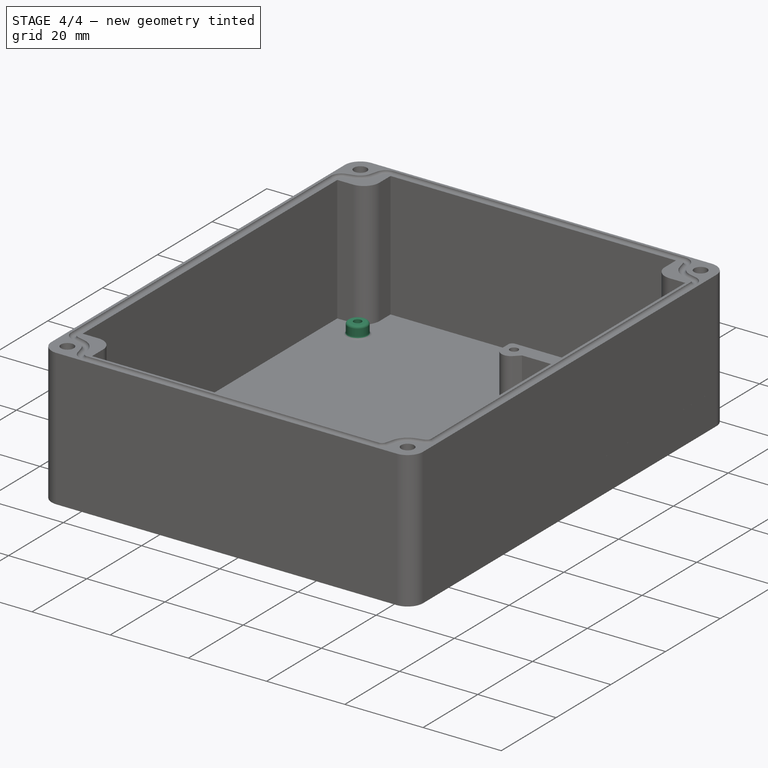
[diagram: stage 4 of 4 — iso view after this stage's code; geometry added in this stage tinted green]
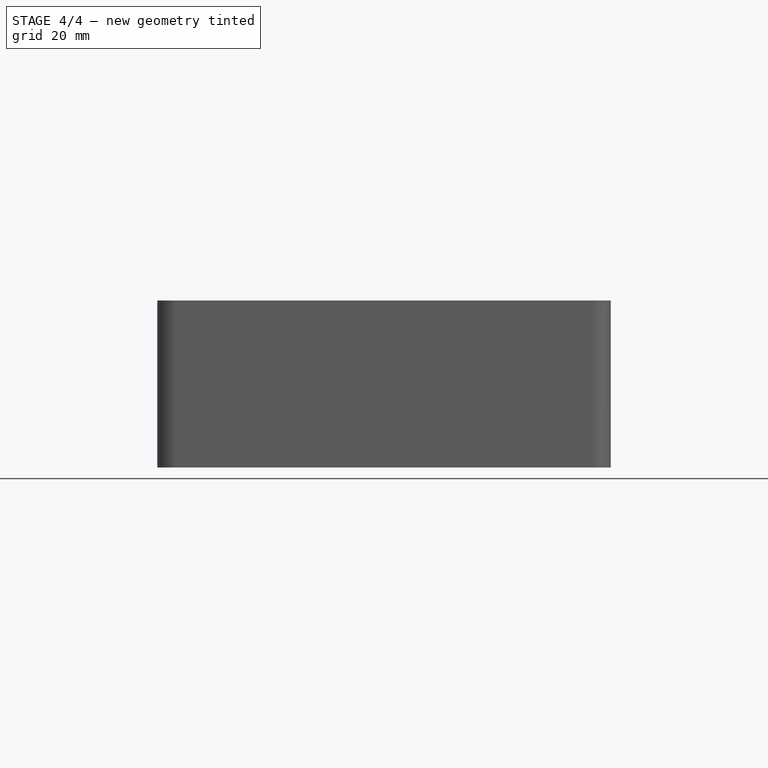
[diagram: stage 4 of 4 — front view after this stage's code; geometry added in this stage tinted green]
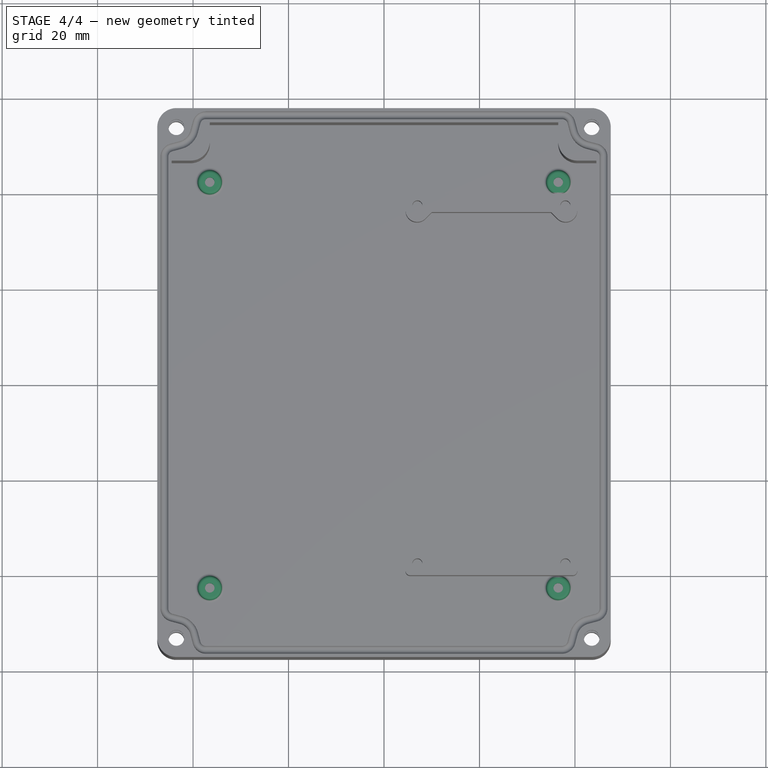
[diagram: stage 4 of 4 — top view after this stage's code; geometry added in this stage tinted green]
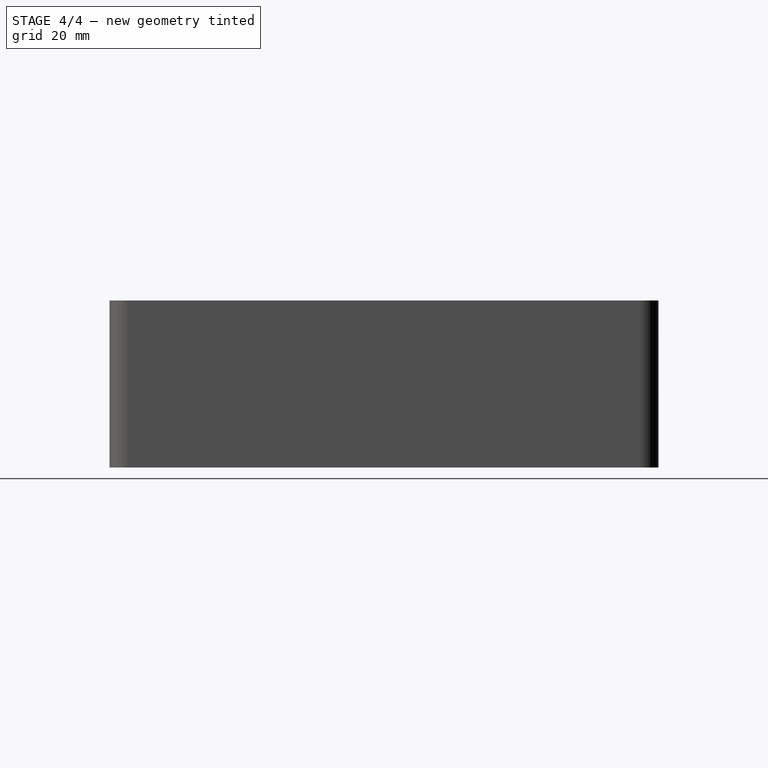
[diagram: stage 4 of 4 — right view after this stage's code; geometry added in this stage tinted green]
FEATURE [Sketcher::SketchObject] Sketch010
  FullyConstrained = true
  MapMode = 5
  Placement = pos=(0,0,3) rot=(0,0,1;0rad)
  Support = -> [Pocket002]
  expr: Constraints[15] = Spreadsheet.pocketw
  expr: Constraints[16] = Spreadsheet.pcbl
  sketch-geometry (8):
    g0: Circle CenterX=-36.5 CenterY=42.5 CenterZ=0 NormalX=0 NormalY=0 NormalZ=1 AngleXU=0 Radius=2.5
    g1: Circle CenterX=-36.5 CenterY=42.5 CenterZ=0 NormalX=0 NormalY=0 NormalZ=1 AngleXU=0 Radius=1
    g2: Circle CenterX=36.5 CenterY=42.5 CenterZ=0 NormalX=0 NormalY=0 NormalZ=1 AngleXU=0 Radius=2.5
    g3: Circle CenterX=36.5 CenterY=42.5 CenterZ=0 NormalX=0 NormalY=0 NormalZ=1 AngleXU=0 Radius=1
    g4: Circle CenterX=-36.5 CenterY=-42.5 CenterZ=0 NormalX=0 NormalY=0 NormalZ=1 AngleXU=0 Radius=2.5
    g5: Circle CenterX=-36.5 CenterY=-42.5 CenterZ=0 NormalX=0 NormalY=0 NormalZ=1 AngleXU=0 Radius=1
    g6: Circle CenterX=36.5 CenterY=-42.5 CenterZ=0 NormalX=0 NormalY=0 NormalZ=1 AngleXU=0 Radius=2.5
    g7: Circle CenterX=36.5 CenterY=-42.5 CenterZ=0 NormalX=0 NormalY=0 NormalZ=1 AngleXU=0 Radius=1
  constraints (17):
    c: Coincident(g1,g0)
    c: Coincident(g3,g2)
    c: Coincident(g5,g4)
    c: Coincident(g7,g6)
    c: Diameter(g0) = 5
    c: Diameter(g1) = 2
    c: Equal(g0,g2)
    c: Equal(g2,g4)
    c: Equal(g4,g6)
    c: Equal(g5,g7)
    c: Equal(g7,g3)
    c: Equal(g3,g1)
    c: Symmetric(g0,g2,g-2)
    c: Symmetric(g4,g6,g-2)
    c: Symmetric(g0,g4,g-1)
    c: DistanceX(g4,g6) = 73
    c: DistanceY(g4,g0) = 85
FEATURE [PartDesign::Pad] Pad002
  BaseFeature = -> Pocket002
  Direction = (0,0,1)
  Length = 3
  Length2 = 10
  Profile = -> Sketch010
  ReferenceAxis = -> Sketch010 [N_Axis]
  Type = 0
FEATURE [PartDesign::Fillet] Fillet
  Base = -> Pad002 [Edge230,Edge236,Edge234,Edge229,Edge231,Edge238,Edge240,Edge232]
  BaseFeature = -> Pad002
  Radius = 0.6
  SupportTransform = false
  UseAllEdges = false
FEATURE [PartDesign::Chamfer] Chamfer001
  Angle = 45
  Base = -> Fillet [Face77]
  BaseFeature = -> Fillet
  ChamferType = 0
  FlipDirection = false
  Size = 0.3
  Size2 = 1
  SupportTransform = false
  UseAllEdges = false
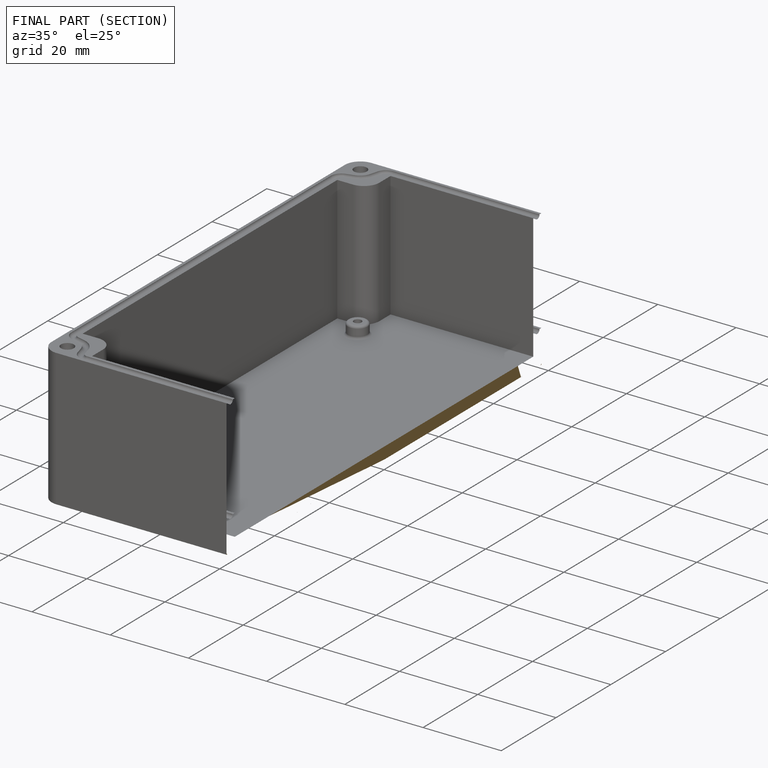
[diagram: finished part — half-section view (interior)]
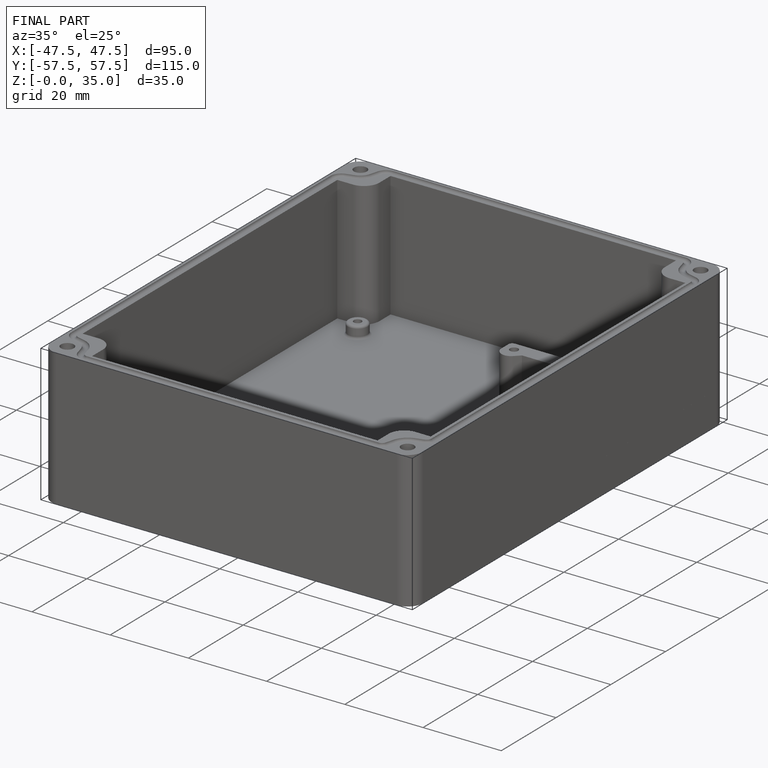
[diagram: finished part — iso view with bounding-box wireframe]
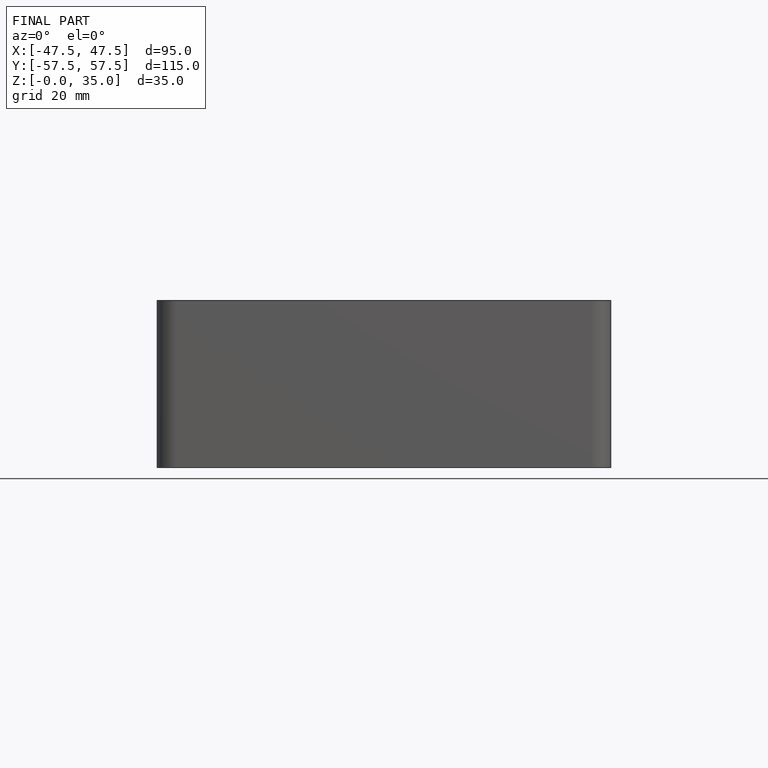
[diagram: finished part — front view with bounding-box wireframe]
